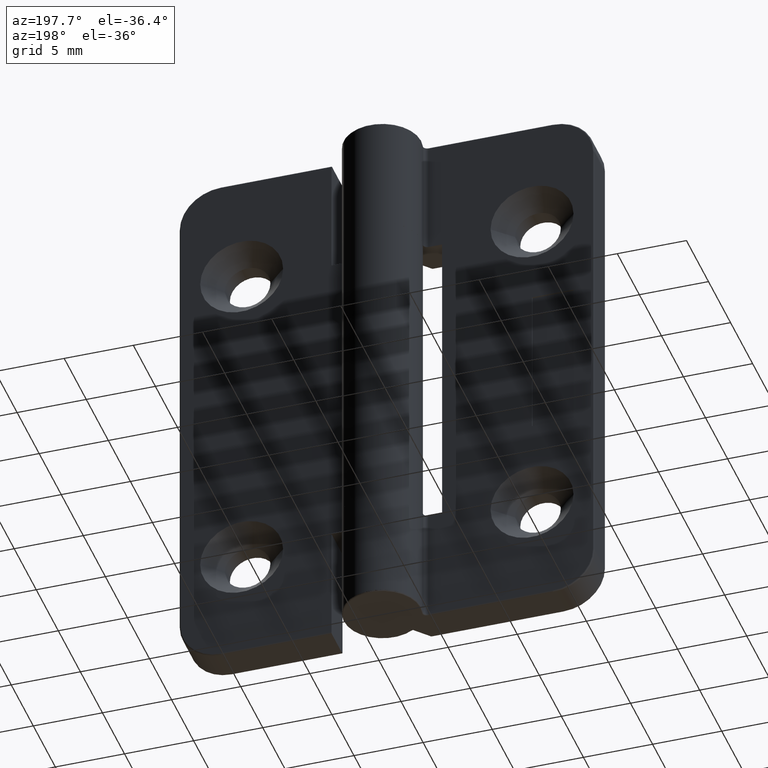
[diagram: clean part render]
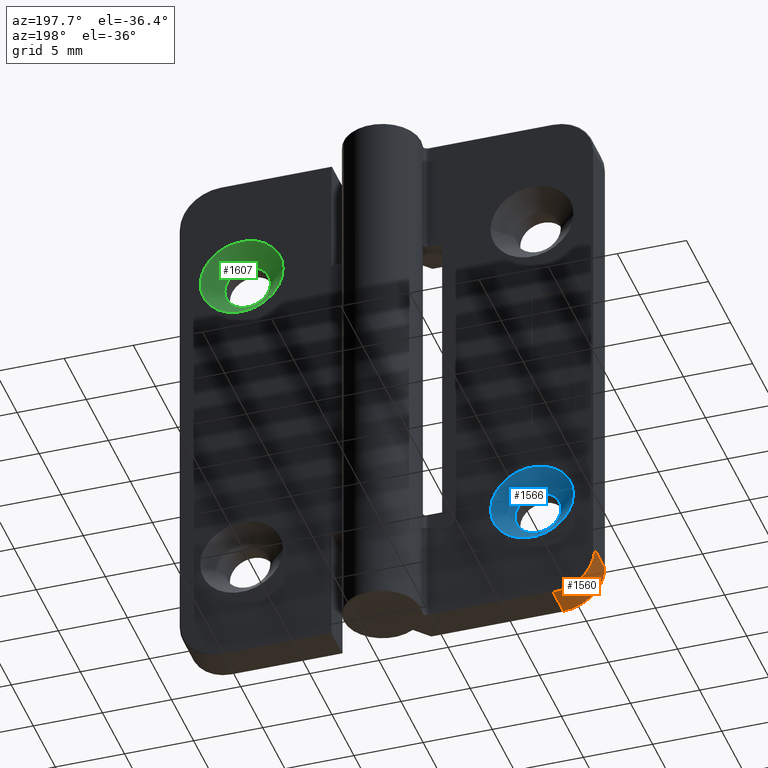
[diagram: same view with three faces highlighted in distinct colors, each labeled with its STEP entity id]
A machine part, auxiliary view with three faces highlighted in distinct colors.
Their STEP definitions:

[orange] entity #1560 — the highlighted cylindrical surface (partial cylindrical patch) has radius 3 mm, axis along (0, 1, 0).
#99=CYLINDRICAL_SURFACE('',#1706,3.);
#143=CIRCLE('',#1666,3.);
#163=CIRCLE('',#1699,3.);
#249=FACE_OUTER_BOUND('',#351,.T.);
#351=EDGE_LOOP('',(#1247,#1248,#1249,#1250));
#479=LINE('',#2523,#605);
#483=LINE('',#2565,#609);
#605=VECTOR('',#1989,2.3);
#609=VECTOR('',#2051,2.3);
#729=VERTEX_POINT('',#2480);
#731=VERTEX_POINT('',#2485);
#739=VERTEX_POINT('',#2522);
#748=VERTEX_POINT('',#2552);
#897=EDGE_CURVE('',#731,#729,#143,.T.);
#911=EDGE_CURVE('',#739,#729,#479,.T.);
#929=EDGE_CURVE('',#739,#748,#163,.T.);
#932=EDGE_CURVE('',#731,#748,#483,.T.);
#1247=ORIENTED_EDGE('',*,*,#897,.F.);
#1248=ORIENTED_EDGE('',*,*,#932,.T.);
#1249=ORIENTED_EDGE('',*,*,#929,.F.);
#1250=ORIENTED_EDGE('',*,*,#911,.T.);
#1560=ADVANCED_FACE('',(#249),#99,.T.);
#1666=AXIS2_PLACEMENT_3D('',#2487,#1959,#1960);
#1699=AXIS2_PLACEMENT_3D('',#2557,#2035,#2036);
#1706=AXIS2_PLACEMENT_3D('',#2564,#2049,#2050);
#1959=DIRECTION('center_axis',(7.83773951454306E-17,-1.,0.));
#1960=DIRECTION('ref_axis',(-0.707106781186548,-5.78241158658936E-17,-0.707106781186548));
#1989=DIRECTION('',(0.,-1.,0.));
#2035=DIRECTION('center_axis',(0.,1.,0.));
#2036=DIRECTION('ref_axis',(-0.707106781186548,0.,-0.707106781186548));
#2049=DIRECTION('center_axis',(0.,1.,0.));
#2050=DIRECTION('ref_axis',(-0.707106781186547,0.,-0.707106781186547));
#2051=DIRECTION('',(0.,1.,0.));
#2480=CARTESIAN_POINT('',(-12.,0.0999999999999993,-20.));
#2485=CARTESIAN_POINT('',(-15.,0.0999999999999987,-17.));
#2487=CARTESIAN_POINT('Origin',(-12.,0.099999999999999,-17.));
#2522=CARTESIAN_POINT('',(-12.,2.4,-20.));
#2523=CARTESIAN_POINT('',(-12.,1.87415960455924,-20.));
#2552=CARTESIAN_POINT('',(-15.,2.4,-17.));
#2557=CARTESIAN_POINT('Origin',(-12.,2.4,-17.));
#2564=CARTESIAN_POINT('Origin',(-12.,1.87415960455924,-17.));
#2565=CARTESIAN_POINT('',(-15.,1.87415960455924,-17.));

[blue] entity #1566 — the highlighted conical surface has half-angle 45 deg.
#36=CONICAL_SURFACE('',#1714,2.325,45.);
#69=FACE_BOUND('',#361,.T.);
#136=CIRCLE('',#1647,3.);
#168=CIRCLE('',#1715,1.65);
#255=FACE_OUTER_BOUND('',#360,.T.);
#360=EDGE_LOOP('',(#1270));
#361=EDGE_LOOP('',(#1271));
#717=VERTEX_POINT('',#2433);
#751=VERTEX_POINT('',#2578);
#876=EDGE_CURVE('',#717,#717,#136,.T.);
#937=EDGE_CURVE('',#751,#751,#168,.T.);
#1270=ORIENTED_EDGE('',*,*,#876,.F.);
#1271=ORIENTED_EDGE('',*,*,#937,.F.);
#1566=ADVANCED_FACE('',(#255,#69),#36,.F.);
#1647=AXIS2_PLACEMENT_3D('',#2434,#1911,#1912);
#1714=AXIS2_PLACEMENT_3D('',#2577,#2068,#2069);
#1715=AXIS2_PLACEMENT_3D('',#2579,#2070,#2071);
#1911=DIRECTION('center_axis',(0.,-1.,0.));
#1912=DIRECTION('ref_axis',(1.,0.,0.));
#2068=DIRECTION('center_axis',(0.,1.,0.));
#2069=DIRECTION('ref_axis',(1.,0.,0.));
#2070=DIRECTION('center_axis',(0.,1.,0.));
#2071=DIRECTION('ref_axis',(1.,0.,0.));
#2433=CARTESIAN_POINT('',(-7.5,2.5,-12.));
#2434=CARTESIAN_POINT('Origin',(-10.5,2.5,-12.));
#2577=CARTESIAN_POINT('Origin',(-10.5,1.825,-12.));
#2578=CARTESIAN_POINT('',(-8.85,1.15,-12.));
#2579=CARTESIAN_POINT('Origin',(-10.5,1.15,-12.));

[green] entity #1607 — the highlighted conical surface has half-angle 45 deg.
#38=CONICAL_SURFACE('',#1794,2.325,45.);
#80=FACE_BOUND('',#413,.T.);
#203=CIRCLE('',#1783,3.);
#206=CIRCLE('',#1795,1.65);
#296=FACE_OUTER_BOUND('',#412,.T.);
#412=EDGE_LOOP('',(#1470));
#413=EDGE_LOOP('',(#1471));
#814=VERTEX_POINT('',#2767);
#817=VERTEX_POINT('',#2786);
#1030=EDGE_CURVE('',#814,#814,#203,.T.);
#1037=EDGE_CURVE('',#817,#817,#206,.T.);
#1470=ORIENTED_EDGE('',*,*,#1030,.F.);
#1471=ORIENTED_EDGE('',*,*,#1037,.F.);
#1607=ADVANCED_FACE('',(#296,#80),#38,.F.);
#1783=AXIS2_PLACEMENT_3D('',#2768,#2264,#2265);
#1794=AXIS2_PLACEMENT_3D('',#2785,#2290,#2291);
#1795=AXIS2_PLACEMENT_3D('',#2787,#2292,#2293);
#2264=DIRECTION('center_axis',(0.,-1.,0.));
#2265=DIRECTION('ref_axis',(1.,0.,0.));
#2290=DIRECTION('center_axis',(0.,1.,0.));
#2291=DIRECTION('ref_axis',(1.,0.,0.));
#2292=DIRECTION('center_axis',(0.,1.,0.));
#2293=DIRECTION('ref_axis',(1.,0.,0.));
#2767=CARTESIAN_POINT('',(-7.5,2.5,-12.));
#2768=CARTESIAN_POINT('Origin',(-10.5,2.5,-12.));
#2785=CARTESIAN_POINT('Origin',(-10.5,1.825,-12.));
#2786=CARTESIAN_POINT('',(-8.85,1.15,-12.));
#2787=CARTESIAN_POINT('Origin',(-10.5,1.15,-12.));